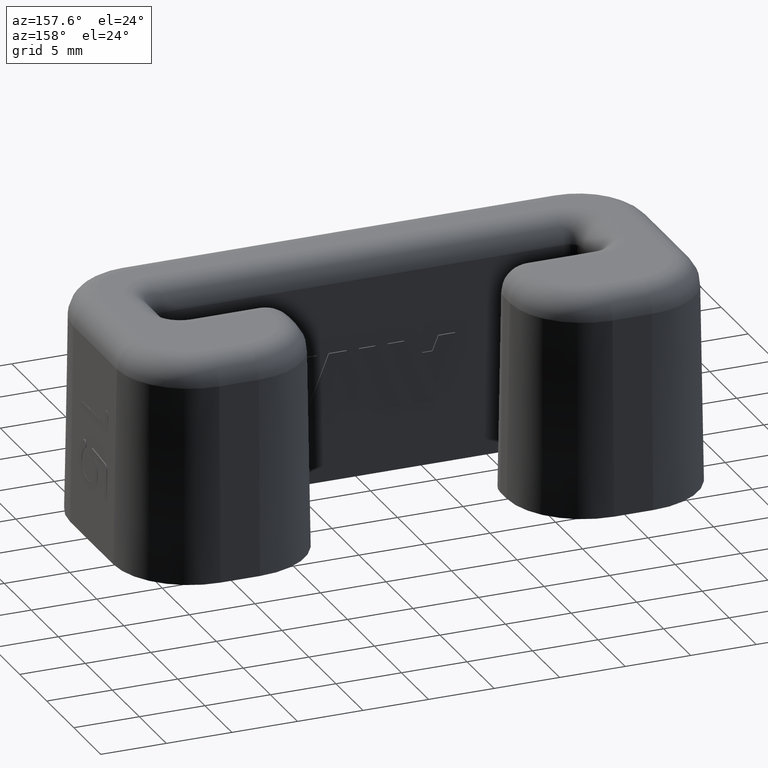
[diagram: clean part render]
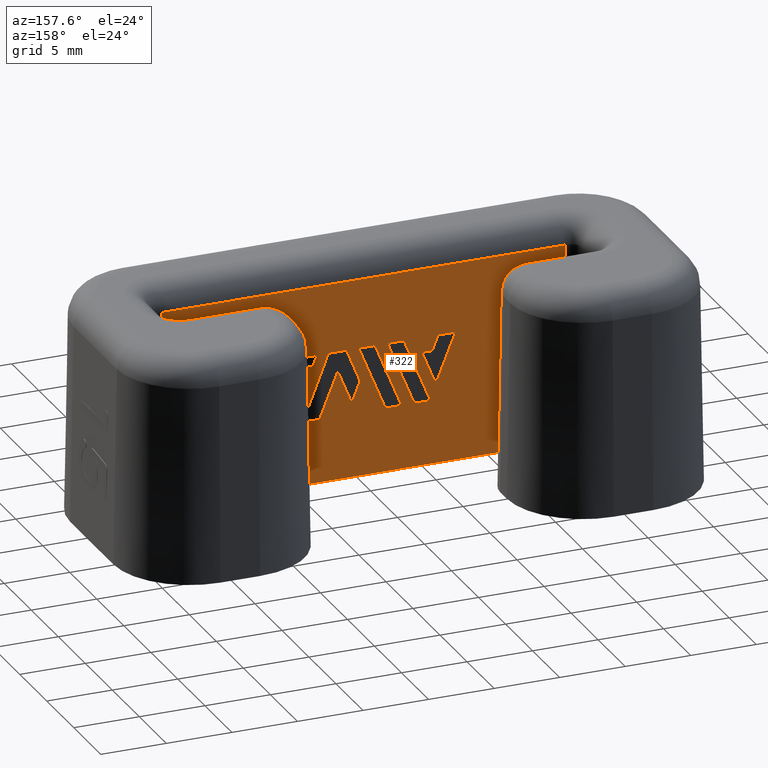
[diagram: same view with one face highlighted and labeled with its STEP entity id]
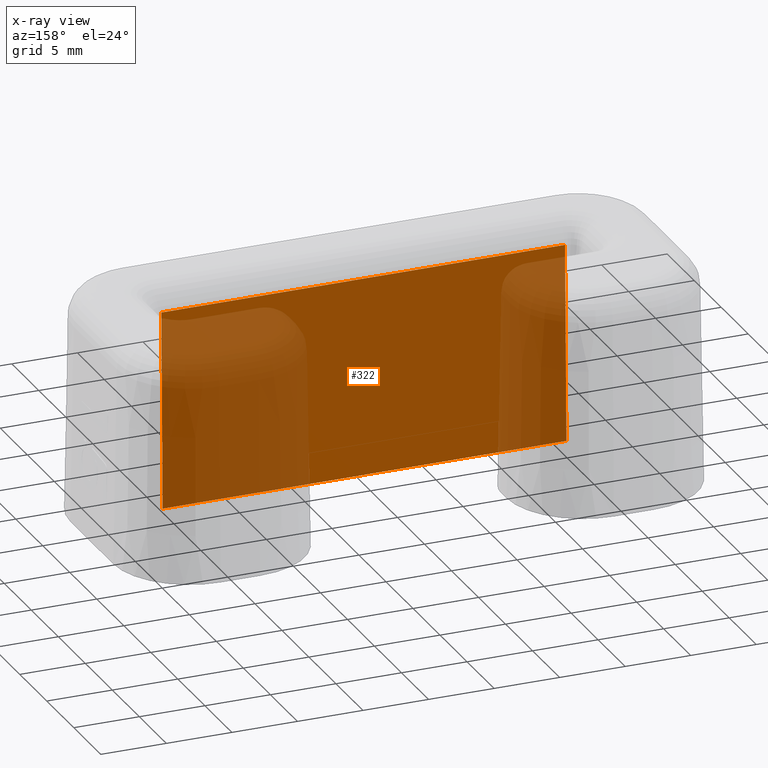
[diagram: x-ray of the same camera — body ghosted, the highlighted face saturated]
A machine part, auxiliary view. The second image highlights one B-rep face of the part: STEP entity #322.
The next image is the same camera in x-ray: the body ghosted, the highlighted face saturated — about 48% of this face is hidden behind the body in this view.
In plain terms, the highlighted planar face has unit normal (0, -0.9998, -0.0175).
Its self-contained STEP definition (entity closure, byte-faithful):
#322=ADVANCED_FACE('',(#692),#693,.F.);
#692=FACE_OUTER_BOUND('',#1114,.T.);
#693=PLANE('',#1115);
#1114=EDGE_LOOP('',(#2739,#2740,#2741,#2742));
#1115=AXIS2_PLACEMENT_3D('',#2743,#2744,#2745);
#2739=ORIENTED_EDGE('',*,*,#3313,.T.);
#2740=ORIENTED_EDGE('',*,*,#3167,.T.);
#2741=ORIENTED_EDGE('',*,*,#3314,.F.);
#2742=ORIENTED_EDGE('',*,*,#3292,.T.);
#2743=CARTESIAN_POINT('',(-16.5,3.6,17.0));
#2744=DIRECTION('',(0.0,-0.999847695156391,-0.0174524064372835));
#2745=DIRECTION('',(0.0,0.0174524064372835,-0.999847695156391));
#3167=EDGE_CURVE('',#3824,#3834,#3836,.F.);
#3292=EDGE_CURVE('',#4039,#4037,#4040,.F.);
#3313=EDGE_CURVE('',#4037,#3824,#4071,.T.);
#3314=EDGE_CURVE('',#4039,#3834,#4072,.T.);
#3824=VERTEX_POINT('',#5358);
#3834=VERTEX_POINT('',#5370);
#3836=LINE('',#5372,#5373);
#4037=VERTEX_POINT('',#5629);
#4039=VERTEX_POINT('',#5631);
#4040=LINE('',#5632,#5633);
#4071=LINE('',#5678,#5679);
#4072=LINE('',#5680,#5681);
#5358=CARTESIAN_POINT('',(-15.4,3.63430086408143,15.0349048128745));
#5370=CARTESIAN_POINT('',(15.4,3.63430086408142,15.0349048128745));
#5372=CARTESIAN_POINT('',(-16.5,3.63430086408143,15.0349048128745));
#5373=VECTOR('',#6034,1000.0);
#5629=CARTESIAN_POINT('',(-15.4,3.89673610377973,0.0));
#5631=CARTESIAN_POINT('',(15.4,3.89673610377973,0.0));
#5632=CARTESIAN_POINT('',(-16.5,3.89673610377973,0.0));
#5633=VECTOR('',#6297,1000.0);
#5678=CARTESIAN_POINT('',(-15.4,3.6,17.0));
#5679=VECTOR('',#6330,1000.0);
#5680=CARTESIAN_POINT('',(15.4,3.6,17.0));
#5681=VECTOR('',#6331,1000.0);
#6034=DIRECTION('',(-1.0,0.0,0.0));
#6297=DIRECTION('',(1.0,0.0,0.0));
#6330=DIRECTION('',(0.0,-0.0174524064372835,0.999847695156391));
#6331=DIRECTION('',(0.0,-0.0174524064372835,0.999847695156391));